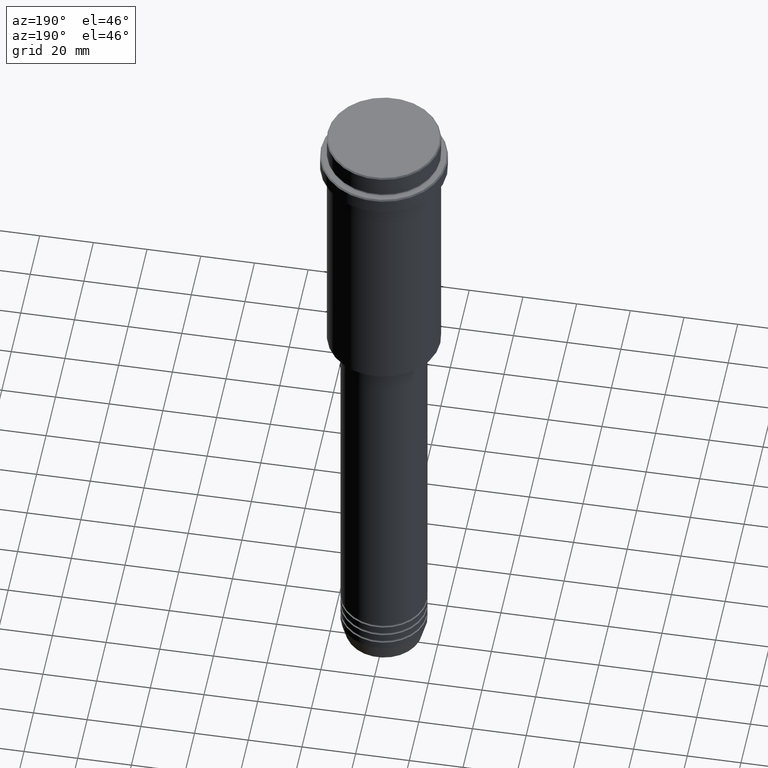
[diagram: clean part render]
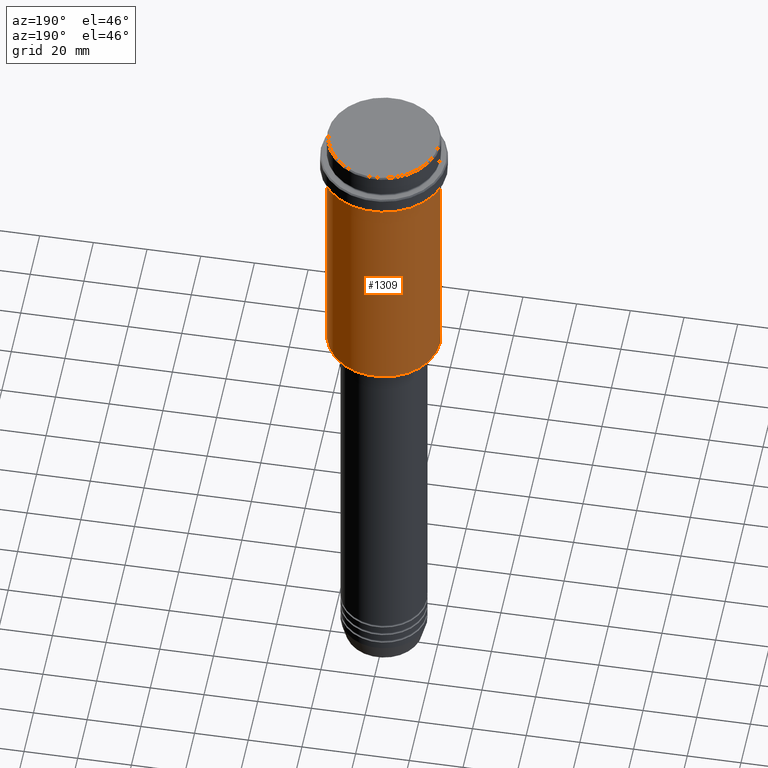
[diagram: same view with one face highlighted and labeled with its STEP entity id]
A machine part, auxiliary view. The second image highlights one B-rep face of the part: STEP entity #1309.
In plain terms, the highlighted cylindrical surface (partial cylindrical patch) has radius 21 mm, axis along (-0, -0, 1).
Its self-contained STEP definition (entity closure, byte-faithful):
#16 = CARTESIAN_POINT ( 'NONE',  ( -21.00000000000000000, 2.571758278209441661E-15, -104.4999999999999289 ) ) ;
#88 = DIRECTION ( 'NONE',  ( -0.000000000000000000, -0.000000000000000000, 1.000000000000000000 ) ) ;
#89 = EDGE_LOOP ( 'NONE', ( #824, #634, #157, #1151 ) ) ;
#135 = CIRCLE ( 'NONE', #299, 21.00000000000000000 ) ;
#157 = ORIENTED_EDGE ( 'NONE', *, *, #1175, .F. ) ;
#158 = CARTESIAN_POINT ( 'NONE',  ( 21.00000000000000000, 0.000000000000000000, -16.00000000000000355 ) ) ;
#165 = CIRCLE ( 'NONE', #971, 21.00000000000000000 ) ;
#175 = CARTESIAN_POINT ( 'NONE',  ( 21.00000000000000000, 0.000000000000000000, -104.4999999999999289 ) ) ;
#194 = VERTEX_POINT ( 'NONE', #818 ) ;
#209 = CARTESIAN_POINT ( 'NONE',  ( 0.000000000000000000, 0.000000000000000000, -104.4999999999999289 ) ) ;
#215 = CARTESIAN_POINT ( 'NONE',  ( 0.000000000000000000, 0.000000000000000000, -16.00000000000000355 ) ) ;
#232 = DIRECTION ( 'NONE',  ( -0.000000000000000000, -0.000000000000000000, 1.000000000000000000 ) ) ;
#256 = EDGE_CURVE ( 'NONE', #630, #194, #930, .T. ) ;
#282 = DIRECTION ( 'NONE',  ( -0.000000000000000000, -0.000000000000000000, 1.000000000000000000 ) ) ;
#299 = AXIS2_PLACEMENT_3D ( 'NONE', #209, #1324, #1124 ) ;
#359 = EDGE_CURVE ( 'NONE', #882, #1356, #626, .T. ) ;
#576 = CARTESIAN_POINT ( 'NONE',  ( -21.00000000000000000, 2.571758278209441661E-15, 0.000000000000000000 ) ) ;
#595 = DIRECTION ( 'NONE',  ( 1.000000000000000000, 0.000000000000000000, 0.000000000000000000 ) ) ;
#626 = LINE ( 'NONE', #1079, #659 ) ;
#630 = VERTEX_POINT ( 'NONE', #16 ) ;
#634 = ORIENTED_EDGE ( 'NONE', *, *, #256, .T. ) ;
#659 = VECTOR ( 'NONE', #88, 1000.000000000000000 ) ;
#673 = DIRECTION ( 'NONE',  ( 1.000000000000000000, 0.000000000000000000, 0.000000000000000000 ) ) ;
#809 = EDGE_CURVE ( 'NONE', #882, #630, #135, .T. ) ;
#810 = DIRECTION ( 'NONE',  ( -0.000000000000000000, -0.000000000000000000, 1.000000000000000000 ) ) ;
#818 = CARTESIAN_POINT ( 'NONE',  ( -21.00000000000000000, 2.571758278209441661E-15, -16.00000000000000355 ) ) ;
#824 = ORIENTED_EDGE ( 'NONE', *, *, #809, .T. ) ;
#882 = VERTEX_POINT ( 'NONE', #175 ) ;
#930 = LINE ( 'NONE', #576, #1207 ) ;
#951 = AXIS2_PLACEMENT_3D ( 'NONE', #1152, #282, #595 ) ;
#971 = AXIS2_PLACEMENT_3D ( 'NONE', #215, #232, #673 ) ;
#1027 = FACE_OUTER_BOUND ( 'NONE', #89, .T. ) ;
#1079 = CARTESIAN_POINT ( 'NONE',  ( 21.00000000000000000, 0.000000000000000000, 0.000000000000000000 ) ) ;
#1124 = DIRECTION ( 'NONE',  ( -1.000000000000000000, 0.000000000000000000, 0.000000000000000000 ) ) ;
#1151 = ORIENTED_EDGE ( 'NONE', *, *, #359, .F. ) ;
#1152 = CARTESIAN_POINT ( 'NONE',  ( 0.000000000000000000, 0.000000000000000000, 0.000000000000000000 ) ) ;
#1175 = EDGE_CURVE ( 'NONE', #1356, #194, #165, .T. ) ;
#1207 = VECTOR ( 'NONE', #810, 1000.000000000000000 ) ;
#1262 = CYLINDRICAL_SURFACE ( 'NONE', #951, 21.00000000000000000 ) ;
#1309 = ADVANCED_FACE ( 'NONE', ( #1027 ), #1262, .T. ) ;
#1324 = DIRECTION ( 'NONE',  ( -0.000000000000000000, -0.000000000000000000, 1.000000000000000000 ) ) ;
#1356 = VERTEX_POINT ( 'NONE', #158 ) ;